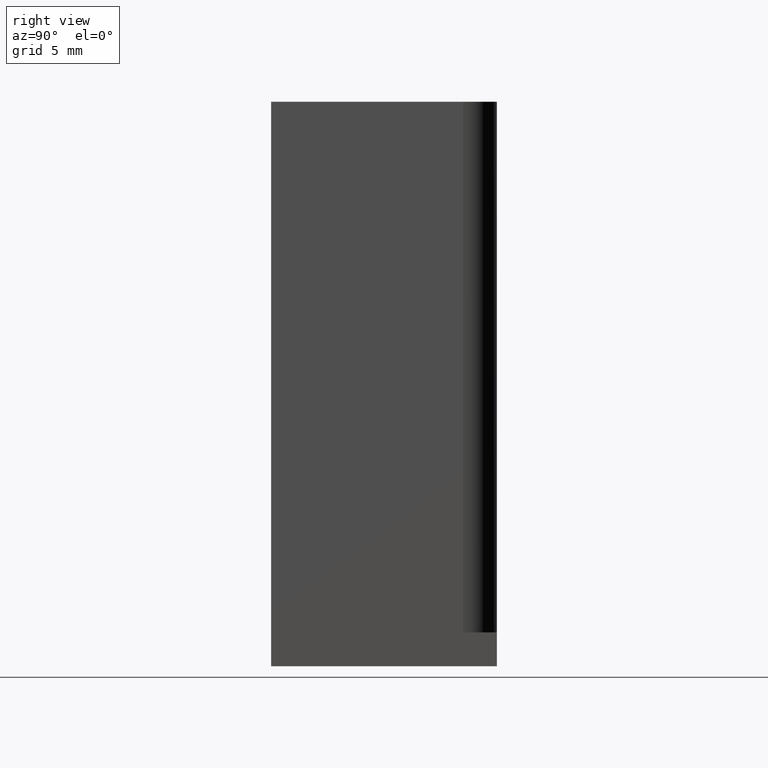
[diagram: clean part render]
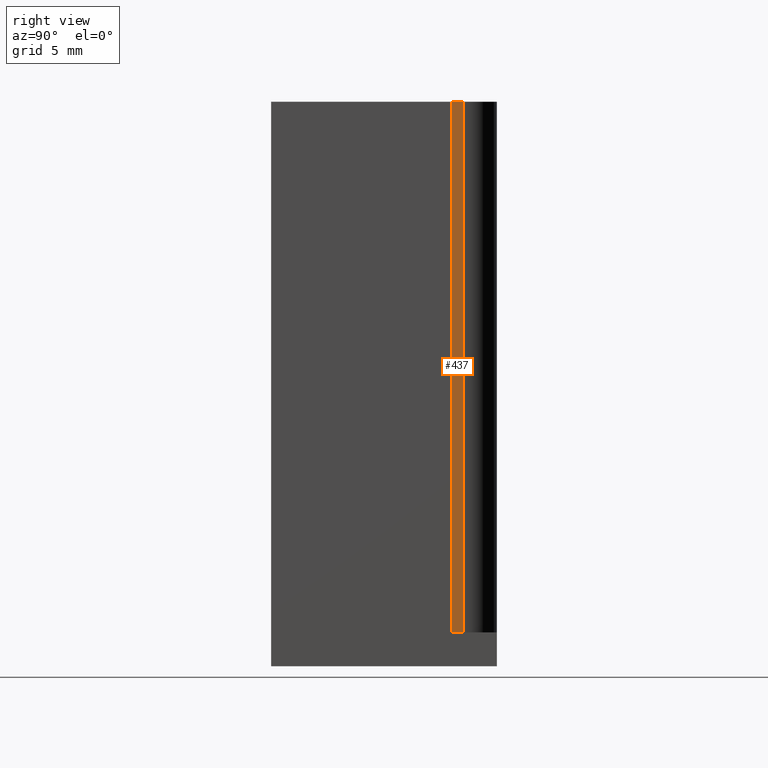
[diagram: same view with one face highlighted and labeled with its STEP entity id]
A machine part, right view. The second image highlights one B-rep face of the part: STEP entity #437.
In plain terms, the highlighted planar face has unit normal (1, 0, 0).
Its self-contained STEP definition (entity closure, byte-faithful):
#40=PLANE('',#537);
#64=FACE_OUTER_BOUND('',#94,.T.);
#94=EDGE_LOOP('',(#357,#358,#359,#360));
#128=LINE('',#743,#175);
#129=LINE('',#746,#176);
#130=LINE('',#748,#177);
#131=LINE('',#749,#178);
#175=VECTOR('',#619,10.);
#176=VECTOR('',#622,10.);
#177=VECTOR('',#623,10.);
#178=VECTOR('',#624,10.);
#232=VERTEX_POINT('',#739);
#233=VERTEX_POINT('',#741);
#234=VERTEX_POINT('',#745);
#235=VERTEX_POINT('',#747);
#280=EDGE_CURVE('',#232,#233,#128,.T.);
#281=EDGE_CURVE('',#232,#234,#129,.T.);
#282=EDGE_CURVE('',#235,#233,#130,.T.);
#283=EDGE_CURVE('',#234,#235,#131,.T.);
#357=ORIENTED_EDGE('',*,*,#281,.F.);
#358=ORIENTED_EDGE('',*,*,#280,.T.);
#359=ORIENTED_EDGE('',*,*,#282,.F.);
#360=ORIENTED_EDGE('',*,*,#283,.F.);
#437=ADVANCED_FACE('',(#64),#40,.T.);
#537=AXIS2_PLACEMENT_3D('',#744,#620,#621);
#619=DIRECTION('',(0.,0.,1.));
#620=DIRECTION('center_axis',(1.,2.22044604925029E-15,0.));
#621=DIRECTION('ref_axis',(-2.22044604925029E-15,1.,0.));
#622=DIRECTION('',(2.22044604925029E-15,-1.,0.));
#623=DIRECTION('',(-2.22044604925029E-15,1.,0.));
#624=DIRECTION('',(0.,0.,1.));
#739=CARTESIAN_POINT('',(9.,0.500000000000012,0.));
#741=CARTESIAN_POINT('',(9.,0.500000000000012,23.5));
#743=CARTESIAN_POINT('',(9.,0.500000000000012,0.));
#744=CARTESIAN_POINT('Origin',(9.,5.55111512312578E-15,0.));
#745=CARTESIAN_POINT('',(9.,5.55111512312578E-15,0.));
#746=CARTESIAN_POINT('',(9.,0.500000000000012,0.));
#747=CARTESIAN_POINT('',(9.,5.55111512312578E-15,23.5));
#748=CARTESIAN_POINT('',(9.,0.500000000000012,23.5));
#749=CARTESIAN_POINT('',(9.,5.55111512312578E-15,0.));